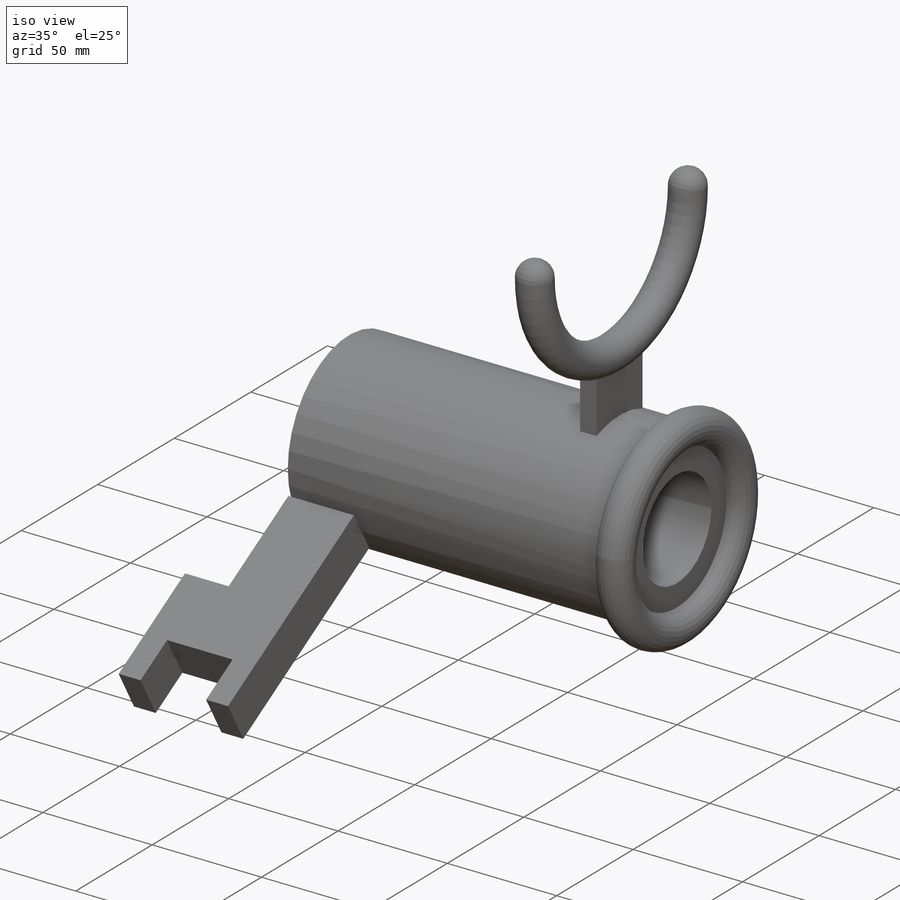
[diagram: iso view]
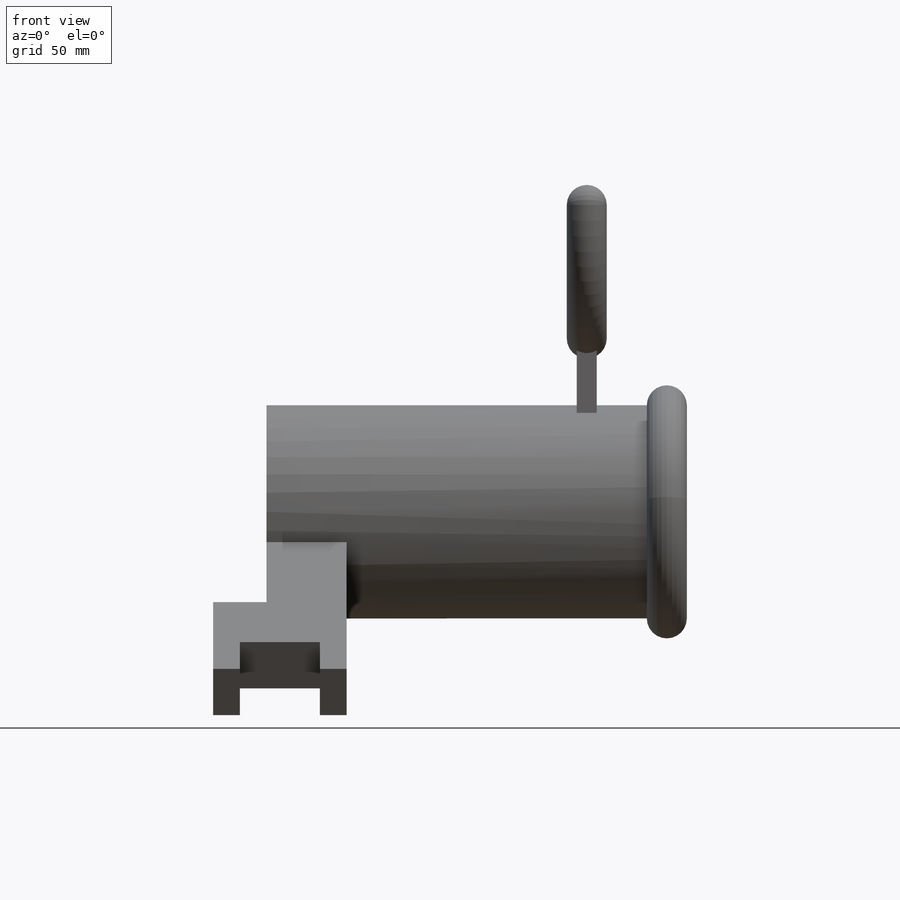
[diagram: front view]
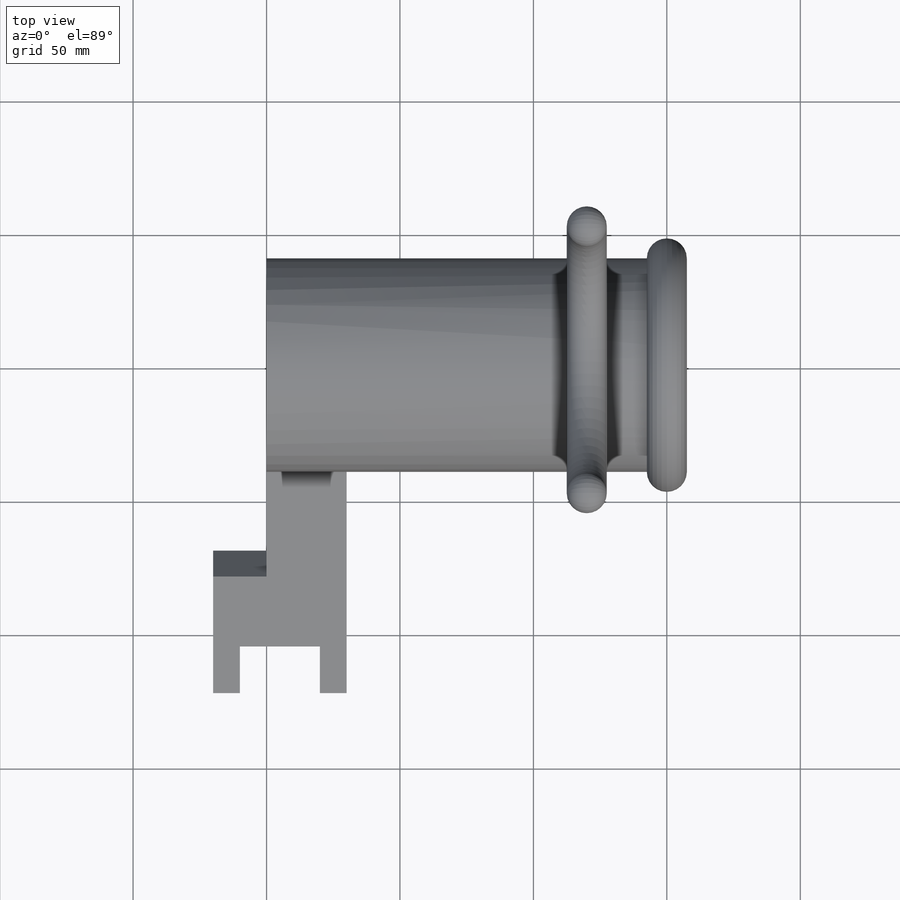
[diagram: top view]
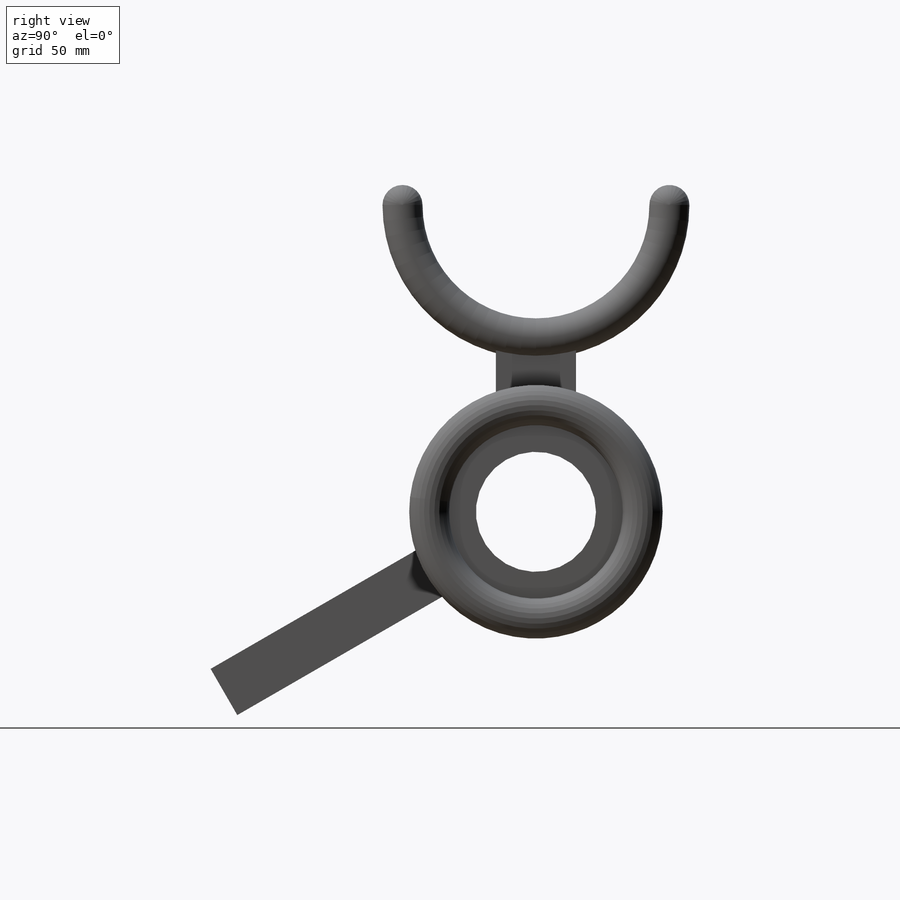
[diagram: right view]
SOLIDWORKS PART (.sldprt)
format: sldprt  version: not decoded by parser v0  size: 308,736 bytes
history: native  units: mm
features: sketch x9, extrude x3, revolve x3, plane x2, material x1, cut_extrude x1 (+13 scaffold rows collapsed)
feature tree (32):
  scaffold x13  (default folders/planes/origin — collapsed)
  material  "Material <not specified>"
  sketch  "Sketch2"  dims[D1=80.0mm]
  extrude  "Boss-Extrude1"  Depth=150mm
  sketch  "Sketch3"  dims[D1=45.0mm]
  cut_extrude  "Cut-Extrude1"  [1 undecoded]
  sketch  "Sketch4"  dims[D1=7.5mm]
  revolve  "Revolve1"  Angle=360deg
  sketch  "Sketch9"  dims[D1=115.0mm]
  plane  "Plane1"
  sketch  "Sketch10"  dims[D1=7.5mm D2=30.0mm D3=50.0mm]
  revolve  "Revolve4"  Angle=180deg
  sketch  "Sketch12"  dims[D1=180.0deg D3=2.54mm D4=2.54mm]
  sketch  "Sketch13"
  revolve  "Revolve5"  Angle=180deg
  sketch  "Sketch14"  dims[D1=30.0mm D2=7.5mm]
  extrude  "Boss-Extrude2"  [1 undecoded]
  plane  "Plane2"
  sketch  "Sketch15"  dims[D1=85.0mm D2=115.0mm D3=135.0mm D4=10.0mm D5=50.0mm D6=30.0mm D7=40.0mm]
  extrude  "Boss-Extrude3"  Depth=20mm
decode coverage: 13 of 16 modeling features carry decoded parameters
note: 2 parameter values undecoded
note: suppression state not decoded; provenance and decode notes live in map.json
